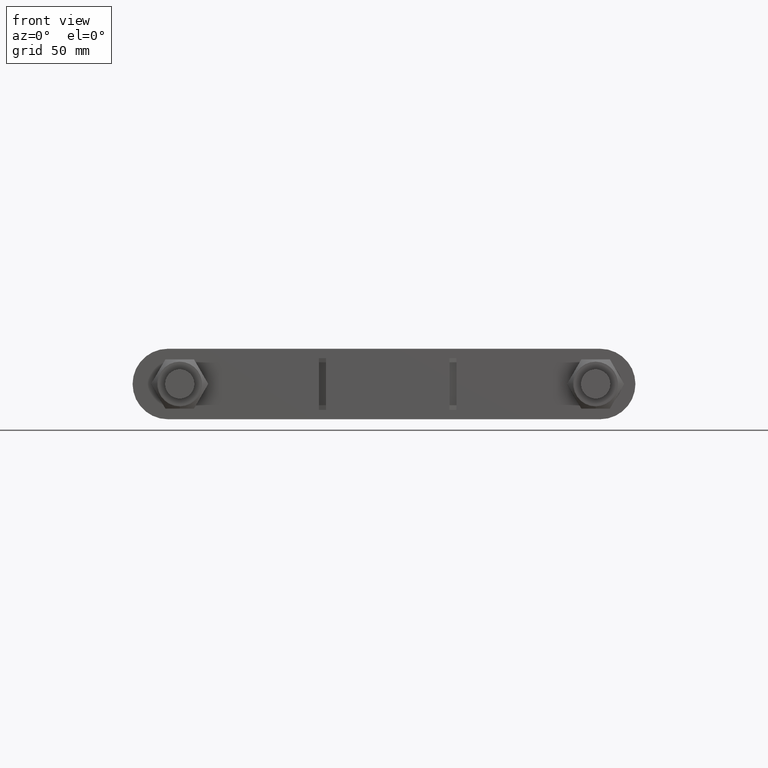
[diagram: clean part render]
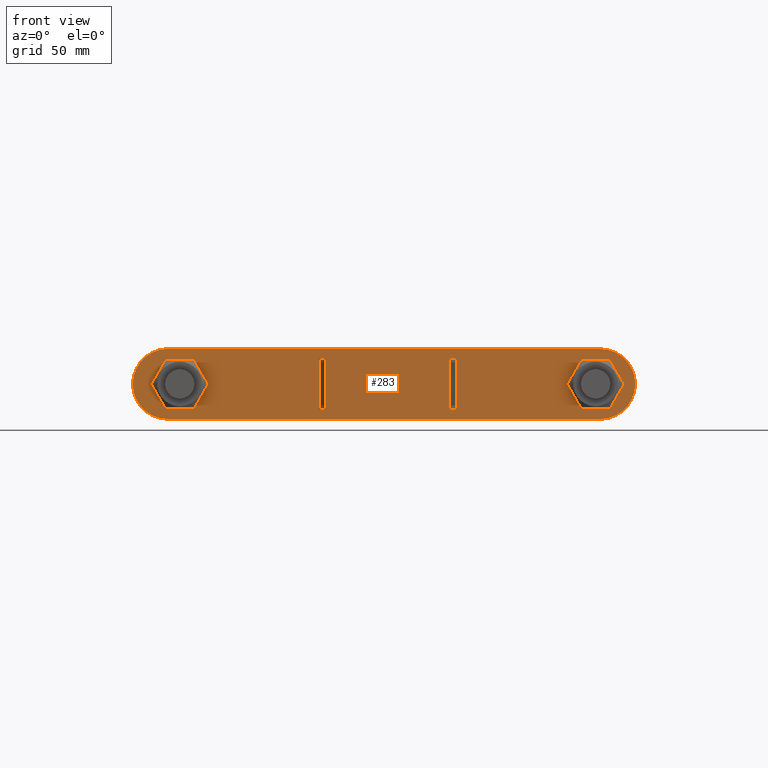
[diagram: same view with one face highlighted and labeled with its STEP entity id]
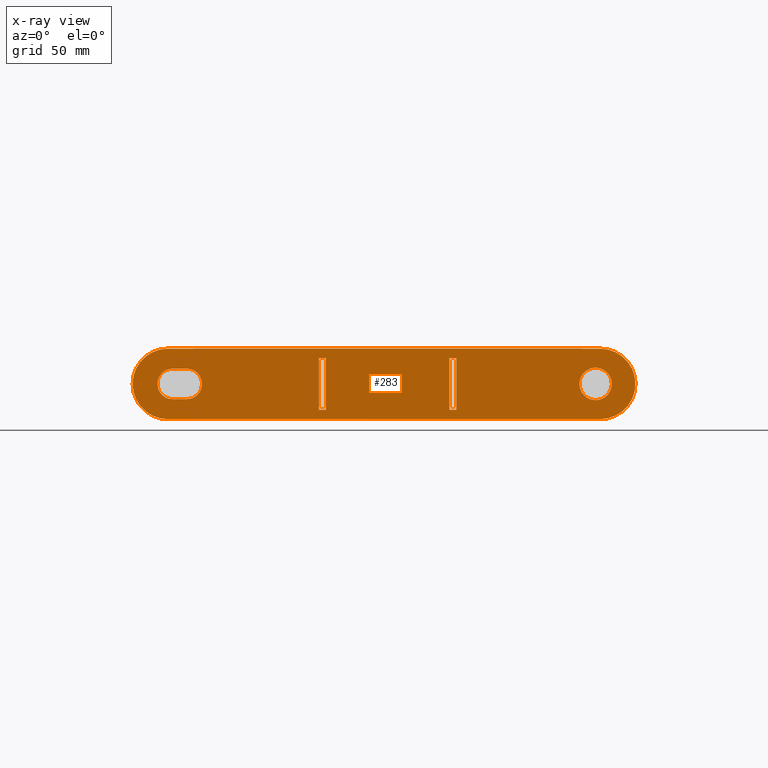
[diagram: x-ray of the same camera — body ghosted, the highlighted face saturated]
A machine part, front view. The second image highlights one B-rep face of the part: STEP entity #283.
The next image is the same camera in x-ray: the body ghosted, the highlighted face saturated — about 0% of this face is hidden behind the body in this view.
In plain terms, the highlighted planar face has unit normal (0, 1, -0).
Its self-contained STEP definition (entity closure, byte-faithful):
#283 = ADVANCED_FACE( '', ( #387, #388, #389, #390, #391 ), #392, .F. );
#387 = FACE_BOUND( '', #1484, .T. );
#388 = FACE_OUTER_BOUND( '', #1485, .T. );
#389 = FACE_BOUND( '', #1486, .T. );
#390 = FACE_BOUND( '', #1487, .T. );
#391 = FACE_BOUND( '', #1488, .T. );
#392 = PLANE( '', #1489 );
#1484 = EDGE_LOOP( '', ( #1746, #1747, #1748, #1749 ) );
#1485 = EDGE_LOOP( '', ( #1750, #1751, #1752, #1753, #1754, #1755 ) );
#1486 = EDGE_LOOP( '', ( #1756 ) );
#1487 = EDGE_LOOP( '', ( #1757, #1758, #1759, #1760 ) );
#1488 = EDGE_LOOP( '', ( #1761, #1762, #1763, #1764 ) );
#1489 = AXIS2_PLACEMENT_3D( '', #1765, #1766, #1767 );
#1746 = ORIENTED_EDGE( '', *, *, #2219, .F. );
#1747 = ORIENTED_EDGE( '', *, *, #2220, .T. );
#1748 = ORIENTED_EDGE( '', *, *, #2221, .T. );
#1749 = ORIENTED_EDGE( '', *, *, #2222, .F. );
#1750 = ORIENTED_EDGE( '', *, *, #2223, .F. );
#1751 = ORIENTED_EDGE( '', *, *, #2224, .F. );
#1752 = ORIENTED_EDGE( '', *, *, #2225, .F. );
#1753 = ORIENTED_EDGE( '', *, *, #2226, .F. );
#1754 = ORIENTED_EDGE( '', *, *, #2227, .F. );
#1755 = ORIENTED_EDGE( '', *, *, #2228, .F. );
#1756 = ORIENTED_EDGE( '', *, *, #2229, .T. );
#1757 = ORIENTED_EDGE( '', *, *, #2230, .F. );
#1758 = ORIENTED_EDGE( '', *, *, #2231, .F. );
#1759 = ORIENTED_EDGE( '', *, *, #2232, .F. );
#1760 = ORIENTED_EDGE( '', *, *, #2233, .F. );
#1761 = ORIENTED_EDGE( '', *, *, #2234, .T. );
#1762 = ORIENTED_EDGE( '', *, *, #2235, .T. );
#1763 = ORIENTED_EDGE( '', *, *, #2236, .F. );
#1764 = ORIENTED_EDGE( '', *, *, #2237, .F. );
#1765 = CARTESIAN_POINT( '', ( -93.5500000000000, 46.0000000000003, -1.54590163459526E-009 ) );
#1766 = DIRECTION( '', ( 1.83421528938208E-016, 1.00000000000000, -3.46365185065227E-013 ) );
#1767 = DIRECTION( '', ( -1.65318418676751E-011, 3.46365185065230E-013, 1.00000000000000 ) );
#2219 = EDGE_CURVE( '', #2393, #2394, #2395, .T. );
#2220 = EDGE_CURVE( '', #2393, #2396, #2397, .T. );
#2221 = EDGE_CURVE( '', #2396, #2398, #2399, .T. );
#2222 = EDGE_CURVE( '', #2394, #2398, #2400, .T. );
#2223 = EDGE_CURVE( '', #2401, #2402, #2403, .T. );
#2224 = EDGE_CURVE( '', #2404, #2401, #2405, .T. );
#2225 = EDGE_CURVE( '', #2406, #2404, #2407, .T. );
#2226 = EDGE_CURVE( '', #2408, #2406, #2409, .T. );
#2227 = EDGE_CURVE( '', #2410, #2408, #2411, .T. );
#2228 = EDGE_CURVE( '', #2402, #2410, #2412, .T. );
#2229 = EDGE_CURVE( '', #2413, #2413, #2414, .T. );
#2230 = EDGE_CURVE( '', #2415, #2416, #2417, .T. );
#2231 = EDGE_CURVE( '', #2418, #2415, #2419, .T. );
#2232 = EDGE_CURVE( '', #2420, #2418, #2421, .T. );
#2233 = EDGE_CURVE( '', #2416, #2420, #2422, .T. );
#2234 = EDGE_CURVE( '', #2423, #2424, #2425, .T. );
#2235 = EDGE_CURVE( '', #2424, #2426, #2427, .T. );
#2236 = EDGE_CURVE( '', #2428, #2426, #2429, .T. );
#2237 = EDGE_CURVE( '', #2423, #2428, #2430, .T. );
#2393 = VERTEX_POINT( '', #2855 );
#2394 = VERTEX_POINT( '', #2856 );
#2395 = LINE( '', #2857, #2858 );
#2396 = VERTEX_POINT( '', #2859 );
#2397 = LINE( '', #2860, #2861 );
#2398 = VERTEX_POINT( '', #2862 );
#2399 = LINE( '', #2863, #2864 );
#2400 = LINE( '', #2865, #2866 );
#2401 = VERTEX_POINT( '', #2867 );
#2402 = VERTEX_POINT( '', #2868 );
#2403 = CIRCLE( '', #2869, 15.0000000000000 );
#2404 = VERTEX_POINT( '', #2870 );
#2405 = CIRCLE( '', #2871, 15.0000000000000 );
#2406 = VERTEX_POINT( '', #2872 );
#2407 = LINE( '', #2873, #2874 );
#2408 = VERTEX_POINT( '', #2875 );
#2409 = CIRCLE( '', #2876, 15.0000000000000 );
#2410 = VERTEX_POINT( '', #2877 );
#2411 = CIRCLE( '', #2878, 15.0000000000000 );
#2412 = LINE( '', #2879, #2880 );
#2413 = VERTEX_POINT( '', #2881 );
#2414 = CIRCLE( '', #2882, 6.90000000000000 );
#2415 = VERTEX_POINT( '', #2883 );
#2416 = VERTEX_POINT( '', #2884 );
#2417 = CIRCLE( '', #2885, 6.50000000000000 );
#2418 = VERTEX_POINT( '', #2886 );
#2419 = LINE( '', #2887, #2888 );
#2420 = VERTEX_POINT( '', #2889 );
#2421 = CIRCLE( '', #2890, 6.50000000000000 );
#2422 = LINE( '', #2891, #2892 );
#2423 = VERTEX_POINT( '', #2893 );
#2424 = VERTEX_POINT( '', #2894 );
#2425 = LINE( '', #2895, #2896 );
#2426 = VERTEX_POINT( '', #2897 );
#2427 = LINE( '', #2898, #2899 );
#2428 = VERTEX_POINT( '', #2900 );
#2429 = LINE( '', #2901, #2902 );
#2430 = LINE( '', #2903, #2904 );
#2855 = CARTESIAN_POINT( '', ( -29.2499999998182, 45.9999999999964, -11.0000000004829 ) );
#2856 = CARTESIAN_POINT( '', ( -26.2499999998181, 45.9999999999964, -11.0000000004333 ) );
#2857 = CARTESIAN_POINT( '', ( -29.2499999998182, 45.9999999999964, -11.0000000004829 ) );
#2858 = VECTOR( '', #3329, 1000.00000000000 );
#2859 = CARTESIAN_POINT( '', ( -29.2500000001819, 46.0000000000041, 10.9999999995171 ) );
#2860 = CARTESIAN_POINT( '', ( -29.2499999998182, 45.9999999999964, -11.0000000004829 ) );
#2861 = VECTOR( '', #3330, 1000.00000000000 );
#2862 = CARTESIAN_POINT( '', ( -26.2500000001819, 46.0000000000041, 10.9999999995667 ) );
#2863 = CARTESIAN_POINT( '', ( -29.2500000001819, 46.0000000000041, 10.9999999995171 ) );
#2864 = VECTOR( '', #3331, 1000.00000000000 );
#2865 = CARTESIAN_POINT( '', ( -26.2499999998181, 45.9999999999964, -11.0000000004333 ) );
#2866 = VECTOR( '', #3332, 1000.00000000000 );
#2867 = CARTESIAN_POINT( '', ( -108.550000000000, 46.0000000000003, -1.79386365009910E-009 ) );
#2868 = CARTESIAN_POINT( '', ( -93.5500000002480, 46.0000000000055, 14.9999999984541 ) );
#2869 = AXIS2_PLACEMENT_3D( '', #3333, #3334, #3335 );
#2870 = CARTESIAN_POINT( '', ( -93.5499999997520, 45.9999999999951, -15.0000000015459 ) );
#2871 = AXIS2_PLACEMENT_3D( '', #3336, #3337, #3338 );
#2872 = CARTESIAN_POINT( '', ( 90.4500000002480, 45.9999999999950, -14.9999999985040 ) );
#2873 = CARTESIAN_POINT( '', ( 90.4500000002480, 45.9999999999950, -14.9999999985040 ) );
#2874 = VECTOR( '', #3339, 1000.00000000000 );
#2875 = CARTESIAN_POINT( '', ( 105.450000000000, 46.0000000000002, 1.74393663179555E-009 ) );
#2876 = AXIS2_PLACEMENT_3D( '', #3340, #3341, #3342 );
#2877 = CARTESIAN_POINT( '', ( 90.4499999997520, 46.0000000000054, 15.0000000014960 ) );
#2878 = AXIS2_PLACEMENT_3D( '', #3343, #3344, #3345 );
#2879 = CARTESIAN_POINT( '', ( -93.5500000002480, 46.0000000000055, 14.9999999984541 ) );
#2880 = VECTOR( '', #3346, 1000.00000000000 );
#2881 = CARTESIAN_POINT( '', ( 95.4000000000000, 46.0000000000002, 1.57779162102542E-009 ) );
#2882 = AXIS2_PLACEMENT_3D( '', #3347, #3348, #3349 );
#2883 = CARTESIAN_POINT( '', ( -91.5000000001075, 45.9999982000096, 6.49999999848799 ) );
#2884 = CARTESIAN_POINT( '', ( -91.4999999998926, 45.9999982000051, -6.50000000151201 ) );
#2885 = AXIS2_PLACEMENT_3D( '', #3350, #3351, #3352 );
#2886 = CARTESIAN_POINT( '', ( -85.5000000001075, 45.9999982000096, 6.49999999858717 ) );
#2887 = CARTESIAN_POINT( '', ( -85.5000000001075, 45.9999982000096, 6.49999999858718 ) );
#2888 = VECTOR( '', #3353, 1000.00000000000 );
#2889 = CARTESIAN_POINT( '', ( -85.4999999998926, 45.9999982000051, -6.50000000141282 ) );
#2890 = AXIS2_PLACEMENT_3D( '', #3354, #3355, #3356 );
#2891 = CARTESIAN_POINT( '', ( -91.4999999998926, 45.9999982000051, -6.50000000151201 ) );
#2892 = VECTOR( '', #3357, 1000.00000000000 );
#2893 = CARTESIAN_POINT( '', ( 29.2500000001818, 45.9999999999964, -10.9999999995158 ) );
#2894 = CARTESIAN_POINT( '', ( 26.2500000001818, 45.9999999999964, -10.9999999995654 ) );
#2895 = CARTESIAN_POINT( '', ( 29.2500000001818, 45.9999999999964, -10.9999999995158 ) );
#2896 = VECTOR( '', #3358, 1000.00000000000 );
#2897 = CARTESIAN_POINT( '', ( 26.2499999998181, 46.0000000000041, 11.0000000004346 ) );
#2898 = CARTESIAN_POINT( '', ( 26.2500000001818, 45.9999999999964, -10.9999999995654 ) );
#2899 = VECTOR( '', #3359, 1000.00000000000 );
#2900 = CARTESIAN_POINT( '', ( 29.2499999998181, 46.0000000000041, 11.0000000004842 ) );
#2901 = CARTESIAN_POINT( '', ( 29.2499999998181, 46.0000000000041, 11.0000000004842 ) );
#2902 = VECTOR( '', #3360, 1000.00000000000 );
#2903 = CARTESIAN_POINT( '', ( 29.2500000001818, 45.9999999999964, -10.9999999995158 ) );
#2904 = VECTOR( '', #3361, 1000.00000000000 );
#3329 = DIRECTION( '', ( 1.00000000000000, -2.44859646319666E-016, 1.65318418676751E-011 ) );
#3330 = DIRECTION( '', ( -1.65321017337435E-011, 3.46525937281444E-013, 1.00000000000000 ) );
#3331 = DIRECTION( '', ( 1.00000000000000, -2.44859646319666E-016, 1.65318418676751E-011 ) );
#3332 = DIRECTION( '', ( -1.65321017337435E-011, 3.46525937281444E-013, 1.00000000000000 ) );
#3333 = CARTESIAN_POINT( '', ( -93.5500000000000, 46.0000000000003, -1.54590163459526E-009 ) );
#3334 = DIRECTION( '', ( 1.83421528938208E-016, 1.00000000000000, -3.46365185065227E-013 ) );
#3335 = DIRECTION( '', ( -1.00000000000000, 1.83421523212154E-016, -1.65318418676750E-011 ) );
#3336 = CARTESIAN_POINT( '', ( -93.5500000000001, 46.0000000000003, -1.54588428736050E-009 ) );
#3337 = DIRECTION( '', ( 1.83421528938208E-016, 1.00000000000000, -3.46365185065227E-013 ) );
#3338 = DIRECTION( '', ( 1.65318418676750E-011, -3.46365185065230E-013, -1.00000000000000 ) );
#3339 = DIRECTION( '', ( -1.00000000000000, 1.83421523212154E-016, -1.65318418676751E-011 ) );
#3340 = CARTESIAN_POINT( '', ( 90.4500000000000, 46.0000000000002, 1.49597461629171E-009 ) );
#3341 = DIRECTION( '', ( 1.83421528938208E-016, 1.00000000000000, -3.46365185065227E-013 ) );
#3342 = DIRECTION( '', ( 1.00000000000000, -1.83421523212154E-016, 1.65318418676751E-011 ) );
#3343 = CARTESIAN_POINT( '', ( 90.4500000000000, 46.0000000000002, 1.49595726905695E-009 ) );
#3344 = DIRECTION( '', ( 1.83421528938208E-016, 1.00000000000000, -3.46365185065227E-013 ) );
#3345 = DIRECTION( '', ( -1.65318418676750E-011, 3.46365185065230E-013, 1.00000000000000 ) );
#3346 = DIRECTION( '', ( 1.00000000000000, -1.83421523212154E-016, 1.65318418676751E-011 ) );
#3347 = CARTESIAN_POINT( '', ( 88.5000000000000, 46.0000000000002, 1.46372191213846E-009 ) );
#3348 = DIRECTION( '', ( 1.83421528938208E-016, 1.00000000000000, -3.46365185065227E-013 ) );
#3349 = DIRECTION( '', ( 1.00000000000000, -1.83421523212154E-016, 1.65318418676751E-011 ) );
#3350 = CARTESIAN_POINT( '', ( -91.5000000000000, 45.9999982000074, -1.51201309286655E-009 ) );
#3351 = DIRECTION( '', ( -1.83421528938208E-016, -1.00000000000000, 3.46365185065227E-013 ) );
#3352 = DIRECTION( '', ( -1.65318418676750E-011, 3.46365185065230E-013, 1.00000000000000 ) );
#3353 = DIRECTION( '', ( -1.00000000000000, 1.83421523212154E-016, -1.65318418676751E-011 ) );
#3354 = CARTESIAN_POINT( '', ( -85.5000000000000, 45.9999982000074, -1.41282204166050E-009 ) );
#3355 = DIRECTION( '', ( -1.83421528938208E-016, -1.00000000000000, 3.46365185065227E-013 ) );
#3356 = DIRECTION( '', ( 1.65318418676751E-011, -3.46365185065230E-013, -1.00000000000000 ) );
#3357 = DIRECTION( '', ( 1.00000000000000, -1.83421523212154E-016, 1.65318418676751E-011 ) );
#3358 = DIRECTION( '', ( -1.00000000000000, 2.44444035486880E-016, -1.65318418676751E-011 ) );
#3359 = DIRECTION( '', ( -1.65315820016066E-011, 3.46525937281444E-013, 1.00000000000000 ) );
#3360 = DIRECTION( '', ( -1.00000000000000, 2.44444035486880E-016, -1.65318418676751E-011 ) );
#3361 = DIRECTION( '', ( -1.65315820016066E-011, 3.46525937281444E-013, 1.00000000000000 ) );